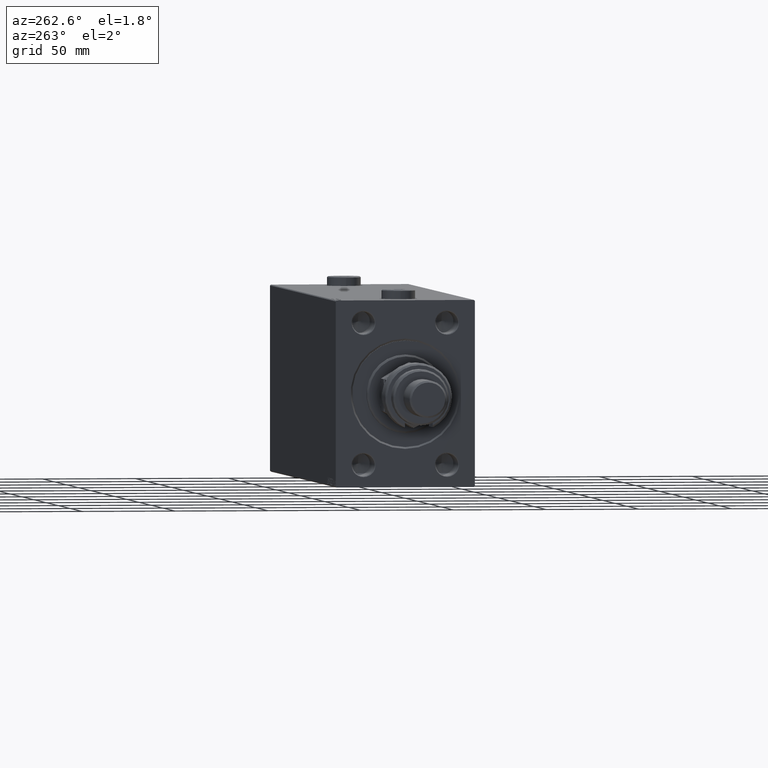
[diagram: clean part render]
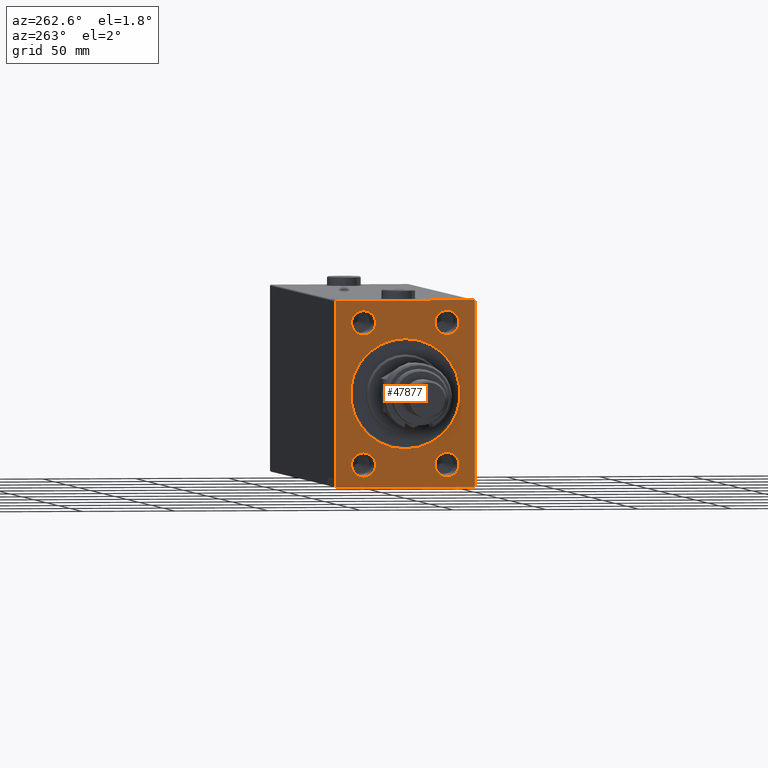
[diagram: same view with one face highlighted and labeled with its STEP entity id]
A machine part, auxiliary view. The second image highlights one B-rep face of the part: STEP entity #47877.
In plain terms, the highlighted planar face has unit normal (1, 0, 0).
Its self-contained STEP definition (entity closure, byte-faithful):
#232 = FACE_BOUND ( 'NONE', #2490, .T. ) ;
#648 = CARTESIAN_POINT ( 'NONE',  ( 0.000000000000000000, -37.50000000000000000, 49.50000000000004263 ) ) ;
#779 = VERTEX_POINT ( 'NONE', #28460 ) ;
#784 = ORIENTED_EDGE ( 'NONE', *, *, #4693, .T. ) ;
#1248 = CIRCLE ( 'NONE', #34946, 6.499999999999922728 ) ;
#1391 = VERTEX_POINT ( 'NONE', #41310 ) ;
#1599 = LINE ( 'NONE', #16585, #22041 ) ;
#1685 = VERTEX_POINT ( 'NONE', #41002 ) ;
#2120 = VERTEX_POINT ( 'NONE', #27418 ) ;
#2466 = EDGE_CURVE ( 'NONE', #779, #47078, #19738, .T. ) ;
#2490 = EDGE_LOOP ( 'NONE', ( #7504, #47095 ) ) ;
#3470 = LINE ( 'NONE', #18447, #12651 ) ;
#3477 = CARTESIAN_POINT ( 'NONE',  ( 0.000000000000000000, 22.50000000000000000, 37.99999999999999289 ) ) ;
#3868 = ORIENTED_EDGE ( 'NONE', *, *, #26458, .T. ) ;
#4261 = AXIS2_PLACEMENT_3D ( 'NONE', #17989, #7177, #36634 ) ;
#4693 = EDGE_CURVE ( 'NONE', #11110, #35675, #19691, .T. ) ;
#5029 = EDGE_CURVE ( 'NONE', #5818, #31431, #1599, .T. ) ;
#5211 = VECTOR ( 'NONE', #18870, 1000.000000000000000 ) ;
#5584 = DIRECTION ( 'NONE',  ( 0.000000000000000000, 0.000000000000000000, -1.000000000000000000 ) ) ;
#5818 = VERTEX_POINT ( 'NONE', #648 ) ;
#6665 = EDGE_LOOP ( 'NONE', ( #26101, #35429 ) ) ;
#6808 = CARTESIAN_POINT ( 'NONE',  ( 0.000000000000000000, 0.000000000000000000, 0.000000000000000000 ) ) ;
#6942 = LINE ( 'NONE', #21916, #10171 ) ;
#7177 = DIRECTION ( 'NONE',  ( 1.000000000000000000, 0.000000000000000000, 0.000000000000000000 ) ) ;
#7397 = CARTESIAN_POINT ( 'NONE',  ( 0.000000000000000000, 3.612708057484695548E-15, -29.50000000000002842 ) ) ;
#7504 = ORIENTED_EDGE ( 'NONE', *, *, #11124, .T. ) ;
#7609 = FACE_BOUND ( 'NONE', #6665, .T. ) ;
#7739 = DIRECTION ( 'NONE',  ( 1.000000000000000000, 0.000000000000000000, 0.000000000000000000 ) ) ;
#9115 = EDGE_LOOP ( 'NONE', ( #10233, #29451 ) ) ;
#9144 = DIRECTION ( 'NONE',  ( 0.000000000000000000, 0.000000000000000000, -1.000000000000000000 ) ) ;
#9607 = EDGE_LOOP ( 'NONE', ( #33067, #3868 ) ) ;
#9734 = CIRCLE ( 'NONE', #4261, 6.499999999999922728 ) ;
#10171 = VECTOR ( 'NONE', #36874, 999.9999999999998863 ) ;
#10233 = ORIENTED_EDGE ( 'NONE', *, *, #10575, .T. ) ;
#10565 = CARTESIAN_POINT ( 'NONE',  ( 0.000000000000000000, 22.50000000000000000, 31.50000000000007105 ) ) ;
#10575 = EDGE_CURVE ( 'NONE', #1685, #35363, #9734, .T. ) ;
#11110 = VERTEX_POINT ( 'NONE', #38276 ) ;
#11124 = EDGE_CURVE ( 'NONE', #48043, #33201, #25015, .T. ) ;
#11381 = ORIENTED_EDGE ( 'NONE', *, *, #19930, .T. ) ;
#11552 = DIRECTION ( 'NONE',  ( 0.000000000000000000, -1.000000000000000000, -2.775557561562891844E-16 ) ) ;
#12252 = EDGE_CURVE ( 'NONE', #13136, #20167, #6942, .T. ) ;
#12626 = AXIS2_PLACEMENT_3D ( 'NONE', #26512, #21878, #41480 ) ;
#12651 = VECTOR ( 'NONE', #14762, 1000.000000000000000 ) ;
#12786 = DIRECTION ( 'NONE',  ( 0.000000000000000000, 0.000000000000000000, -1.000000000000000000 ) ) ;
#12957 = AXIS2_PLACEMENT_3D ( 'NONE', #46437, #19948, #9144 ) ;
#13136 = VERTEX_POINT ( 'NONE', #26325 ) ;
#14436 = CIRCLE ( 'NONE', #38743, 6.500000000000005329 ) ;
#14762 = DIRECTION ( 'NONE',  ( -0.000000000000000000, 0.7071067811865230368, -0.7071067811865721087 ) ) ;
#14971 = FACE_BOUND ( 'NONE', #30715, .T. ) ;
#15160 = EDGE_CURVE ( 'NONE', #2120, #1391, #29216, .T. ) ;
#15223 = CARTESIAN_POINT ( 'NONE',  ( 0.000000000000000000, 0.000000000000000000, 0.000000000000000000 ) ) ;
#15447 = LINE ( 'NONE', #38011, #5211 ) ;
#16029 = ORIENTED_EDGE ( 'NONE', *, *, #5029, .F. ) ;
#16169 = EDGE_CURVE ( 'NONE', #21807, #31206, #33748, .T. ) ;
#16183 = CARTESIAN_POINT ( 'NONE',  ( 0.000000000000000000, -22.50000000000000000, -31.50000000000000000 ) ) ;
#16476 = EDGE_CURVE ( 'NONE', #35675, #11110, #22834, .T. ) ;
#16585 = CARTESIAN_POINT ( 'NONE',  ( 0.000000000000000000, -37.50000000000000000, 49.99999999999998579 ) ) ;
#17694 = CARTESIAN_POINT ( 'NONE',  ( 0.000000000000000000, 37.50000000000000711, -50.00000000000000000 ) ) ;
#17800 = CARTESIAN_POINT ( 'NONE',  ( 0.000000000000000000, 37.00000000000007105, -50.00000000000000000 ) ) ;
#17854 = DIRECTION ( 'NONE',  ( 1.000000000000000000, 0.000000000000000000, 0.000000000000000000 ) ) ;
#17989 = CARTESIAN_POINT ( 'NONE',  ( 0.000000000000000000, -22.50000000000000000, 37.99999999999999289 ) ) ;
#18447 = CARTESIAN_POINT ( 'NONE',  ( 0.000000000000000000, 37.00000000000002132, 50.00000000000000711 ) ) ;
#18452 = DIRECTION ( 'NONE',  ( 1.000000000000000000, 0.000000000000000000, 0.000000000000000000 ) ) ;
#18501 = LINE ( 'NONE', #33449, #45541 ) ;
#18537 = CIRCLE ( 'NONE', #34976, 29.50000000000002842 ) ;
#18692 = EDGE_CURVE ( 'NONE', #5818, #1391, #23078, .T. ) ;
#18748 = EDGE_CURVE ( 'NONE', #47031, #31431, #18501, .T. ) ;
#18840 = CARTESIAN_POINT ( 'NONE',  ( 0.000000000000000000, 0.000000000000000000, 29.50000000000002842 ) ) ;
#18870 = DIRECTION ( 'NONE',  ( 0.000000000000000000, 1.000000000000000000, 0.000000000000000000 ) ) ;
#19271 = DIRECTION ( 'NONE',  ( 0.000000000000000000, 0.000000000000000000, -1.000000000000000000 ) ) ;
#19456 = CARTESIAN_POINT ( 'NONE',  ( 0.000000000000000000, 37.49999999999999289, 49.50000000000000000 ) ) ;
#19691 = CIRCLE ( 'NONE', #19804, 6.500000000000005329 ) ;
#19738 = CIRCLE ( 'NONE', #27572, 6.499999999999922728 ) ;
#19804 = AXIS2_PLACEMENT_3D ( 'NONE', #43628, #39933, #5584 ) ;
#19930 = EDGE_CURVE ( 'NONE', #2120, #32031, #3470, .T. ) ;
#19948 = DIRECTION ( 'NONE',  ( 1.000000000000000000, 0.000000000000000000, 0.000000000000000000 ) ) ;
#20167 = VERTEX_POINT ( 'NONE', #17800 ) ;
#20729 = CARTESIAN_POINT ( 'NONE',  ( 0.000000000000000000, -22.50000000000000000, -44.50000000000001421 ) ) ;
#21807 = VERTEX_POINT ( 'NONE', #16183 ) ;
#21856 = FACE_BOUND ( 'NONE', #9115, .T. ) ;
#21878 = DIRECTION ( 'NONE',  ( 1.000000000000000000, 0.000000000000000000, 0.000000000000000000 ) ) ;
#21916 = CARTESIAN_POINT ( 'NONE',  ( 0.000000000000000000, 37.50000000000000711, -49.50000000000005684 ) ) ;
#22041 = VECTOR ( 'NONE', #31525, 1000.000000000000000 ) ;
#22052 = DIRECTION ( 'NONE',  ( 0.000000000000000000, 0.000000000000000000, -1.000000000000000000 ) ) ;
#22470 = ORIENTED_EDGE ( 'NONE', *, *, #18692, .T. ) ;
#22834 = CIRCLE ( 'NONE', #44813, 6.500000000000005329 ) ;
#23078 = LINE ( 'NONE', #25617, #25157 ) ;
#23541 = DIRECTION ( 'NONE',  ( 0.000000000000000000, 0.000000000000000000, -1.000000000000000000 ) ) ;
#25015 = CIRCLE ( 'NONE', #28928, 29.50000000000002842 ) ;
#25157 = VECTOR ( 'NONE', #38047, 1000.000000000000000 ) ;
#25617 = CARTESIAN_POINT ( 'NONE',  ( 0.000000000000000000, -37.50000000000000000, 49.50000000000004263 ) ) ;
#26101 = ORIENTED_EDGE ( 'NONE', *, *, #2466, .T. ) ;
#26298 = CARTESIAN_POINT ( 'NONE',  ( 0.000000000000000000, 22.50000000000000000, -44.50000000000001421 ) ) ;
#26325 = CARTESIAN_POINT ( 'NONE',  ( 0.000000000000000000, 37.50000000000000711, -49.50000000000005684 ) ) ;
#26458 = EDGE_CURVE ( 'NONE', #31206, #21807, #14436, .T. ) ;
#26512 = CARTESIAN_POINT ( 'NONE',  ( 0.000000000000000000, -22.50000000000000000, -38.00000000000000711 ) ) ;
#26620 = ORIENTED_EDGE ( 'NONE', *, *, #12252, .T. ) ;
#27215 = CARTESIAN_POINT ( 'NONE',  ( 0.000000000000000000, 0.000000000000000000, 0.000000000000000000 ) ) ;
#27418 = CARTESIAN_POINT ( 'NONE',  ( 0.000000000000000000, 37.00000000000002132, 50.00000000000000711 ) ) ;
#27572 = AXIS2_PLACEMENT_3D ( 'NONE', #3477, #18452, #47889 ) ;
#28460 = CARTESIAN_POINT ( 'NONE',  ( 0.000000000000000000, 22.50000000000000000, 44.49999999999991473 ) ) ;
#28928 = AXIS2_PLACEMENT_3D ( 'NONE', #27215, #42193, #23541 ) ;
#29196 = DIRECTION ( 'NONE',  ( 0.000000000000000000, -1.387778780781445676E-16, 1.000000000000000000 ) ) ;
#29203 = DIRECTION ( 'NONE',  ( 0.000000000000000000, 0.000000000000000000, -1.000000000000000000 ) ) ;
#29216 = LINE ( 'NONE', #29936, #42386 ) ;
#29407 = CARTESIAN_POINT ( 'NONE',  ( 0.000000000000000000, 22.50000000000000000, -38.00000000000000711 ) ) ;
#29451 = ORIENTED_EDGE ( 'NONE', *, *, #30685, .T. ) ;
#29920 = PLANE ( 'NONE',  #44352 ) ;
#29936 = CARTESIAN_POINT ( 'NONE',  ( 0.000000000000000000, 37.49999999999999289, 50.00000000000000711 ) ) ;
#30685 = EDGE_CURVE ( 'NONE', #35363, #1685, #1248, .T. ) ;
#30715 = EDGE_LOOP ( 'NONE', ( #784, #34772 ) ) ;
#30788 = ORIENTED_EDGE ( 'NONE', *, *, #15160, .F. ) ;
#31206 = VERTEX_POINT ( 'NONE', #20729 ) ;
#31396 = CARTESIAN_POINT ( 'NONE',  ( 0.000000000000000000, -22.50000000000000000, 37.99999999999999289 ) ) ;
#31431 = VERTEX_POINT ( 'NONE', #39676 ) ;
#31525 = DIRECTION ( 'NONE',  ( 0.000000000000000000, 0.000000000000000000, -1.000000000000000000 ) ) ;
#31740 = CIRCLE ( 'NONE', #12957, 6.499999999999922728 ) ;
#32031 = VERTEX_POINT ( 'NONE', #19456 ) ;
#32146 = LINE ( 'NONE', #17694, #33263 ) ;
#32986 = EDGE_CURVE ( 'NONE', #47078, #779, #31740, .T. ) ;
#33067 = ORIENTED_EDGE ( 'NONE', *, *, #16169, .T. ) ;
#33201 = VERTEX_POINT ( 'NONE', #7397 ) ;
#33263 = VECTOR ( 'NONE', #29196, 1000.000000000000000 ) ;
#33449 = CARTESIAN_POINT ( 'NONE',  ( 0.000000000000000000, -37.00000000000002842, -50.00000000000000000 ) ) ;
#33739 = ORIENTED_EDGE ( 'NONE', *, *, #18748, .T. ) ;
#33748 = CIRCLE ( 'NONE', #12626, 6.500000000000005329 ) ;
#34192 = CARTESIAN_POINT ( 'NONE',  ( 0.000000000000000000, -22.50000000000000000, 31.50000000000007105 ) ) ;
#34772 = ORIENTED_EDGE ( 'NONE', *, *, #16476, .T. ) ;
#34946 = AXIS2_PLACEMENT_3D ( 'NONE', #31396, #46391, #12786 ) ;
#34976 = AXIS2_PLACEMENT_3D ( 'NONE', #6808, #17854, #44354 ) ;
#34989 = EDGE_CURVE ( 'NONE', #33201, #48043, #18537, .T. ) ;
#35336 = CARTESIAN_POINT ( 'NONE',  ( 0.000000000000000000, -37.00000000000002842, -50.00000000000000000 ) ) ;
#35363 = VERTEX_POINT ( 'NONE', #34192 ) ;
#35429 = ORIENTED_EDGE ( 'NONE', *, *, #32986, .T. ) ;
#35495 = ORIENTED_EDGE ( 'NONE', *, *, #35918, .F. ) ;
#35605 = EDGE_LOOP ( 'NONE', ( #16029, #22470, #30788, #11381, #46664, #26620, #35495, #33739 ) ) ;
#35675 = VERTEX_POINT ( 'NONE', #26298 ) ;
#35918 = EDGE_CURVE ( 'NONE', #47031, #20167, #15447, .T. ) ;
#36634 = DIRECTION ( 'NONE',  ( 0.000000000000000000, 0.000000000000000000, -1.000000000000000000 ) ) ;
#36812 = FACE_OUTER_BOUND ( 'NONE', #35605, .T. ) ;
#36874 = DIRECTION ( 'NONE',  ( 0.000000000000000000, -0.7071067811865425767, -0.7071067811865525687 ) ) ;
#38011 = CARTESIAN_POINT ( 'NONE',  ( 0.000000000000000000, -37.50000000000000000, -50.00000000000000000 ) ) ;
#38047 = DIRECTION ( 'NONE',  ( -0.000000000000000000, 0.7071067811865524577, 0.7071067811865426878 ) ) ;
#38276 = CARTESIAN_POINT ( 'NONE',  ( 0.000000000000000000, 22.50000000000000000, -31.50000000000000000 ) ) ;
#38743 = AXIS2_PLACEMENT_3D ( 'NONE', #41357, #7739, #19271 ) ;
#39676 = CARTESIAN_POINT ( 'NONE',  ( 0.000000000000000000, -37.50000000000000000, -49.49999999999997158 ) ) ;
#39933 = DIRECTION ( 'NONE',  ( 1.000000000000000000, 0.000000000000000000, 0.000000000000000000 ) ) ;
#41002 = CARTESIAN_POINT ( 'NONE',  ( 0.000000000000000000, -22.50000000000000000, 44.49999999999991473 ) ) ;
#41220 = FACE_BOUND ( 'NONE', #9607, .T. ) ;
#41310 = CARTESIAN_POINT ( 'NONE',  ( 0.000000000000000000, -37.00000000000004974, 49.99999999999998579 ) ) ;
#41357 = CARTESIAN_POINT ( 'NONE',  ( 0.000000000000000000, -22.50000000000000000, -38.00000000000000711 ) ) ;
#41480 = DIRECTION ( 'NONE',  ( 0.000000000000000000, 0.000000000000000000, -1.000000000000000000 ) ) ;
#42193 = DIRECTION ( 'NONE',  ( 1.000000000000000000, 0.000000000000000000, 0.000000000000000000 ) ) ;
#42386 = VECTOR ( 'NONE', #11552, 1000.000000000000000 ) ;
#43628 = CARTESIAN_POINT ( 'NONE',  ( 0.000000000000000000, 22.50000000000000000, -38.00000000000000711 ) ) ;
#44352 = AXIS2_PLACEMENT_3D ( 'NONE', #15223, #48104, #29203 ) ;
#44354 = DIRECTION ( 'NONE',  ( 0.000000000000000000, 0.000000000000000000, -1.000000000000000000 ) ) ;
#44392 = DIRECTION ( 'NONE',  ( 1.000000000000000000, 0.000000000000000000, 0.000000000000000000 ) ) ;
#44813 = AXIS2_PLACEMENT_3D ( 'NONE', #29407, #44392, #22052 ) ;
#45302 = EDGE_CURVE ( 'NONE', #13136, #32031, #32146, .T. ) ;
#45541 = VECTOR ( 'NONE', #48431, 1000.000000000000000 ) ;
#46391 = DIRECTION ( 'NONE',  ( 1.000000000000000000, 0.000000000000000000, 0.000000000000000000 ) ) ;
#46437 = CARTESIAN_POINT ( 'NONE',  ( 0.000000000000000000, 22.50000000000000000, 37.99999999999999289 ) ) ;
#46664 = ORIENTED_EDGE ( 'NONE', *, *, #45302, .F. ) ;
#47031 = VERTEX_POINT ( 'NONE', #35336 ) ;
#47078 = VERTEX_POINT ( 'NONE', #10565 ) ;
#47095 = ORIENTED_EDGE ( 'NONE', *, *, #34989, .T. ) ;
#47877 = ADVANCED_FACE ( 'NONE', ( #232, #41220, #21856, #7609, #14971, #36812 ), #29920, .F. ) ;
#47889 = DIRECTION ( 'NONE',  ( 0.000000000000000000, 0.000000000000000000, -1.000000000000000000 ) ) ;
#48043 = VERTEX_POINT ( 'NONE', #18840 ) ;
#48104 = DIRECTION ( 'NONE',  ( 1.000000000000000000, 0.000000000000000000, 0.000000000000000000 ) ) ;
#48431 = DIRECTION ( 'NONE',  ( -0.000000000000000000, -0.7071067811865279218, 0.7071067811865671127 ) ) ;